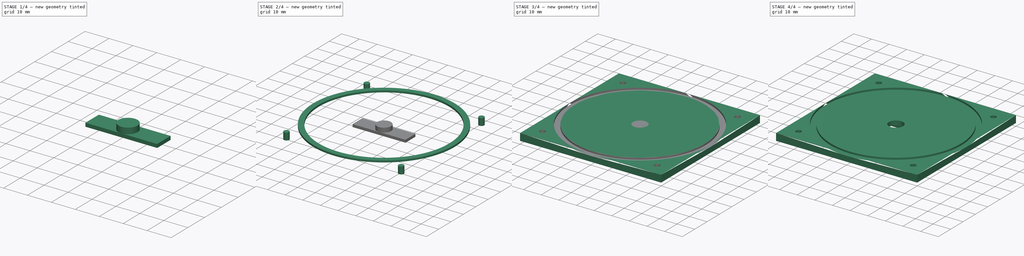
[diagram: build sequence overview — one tinted view per stage of 4, left to right]
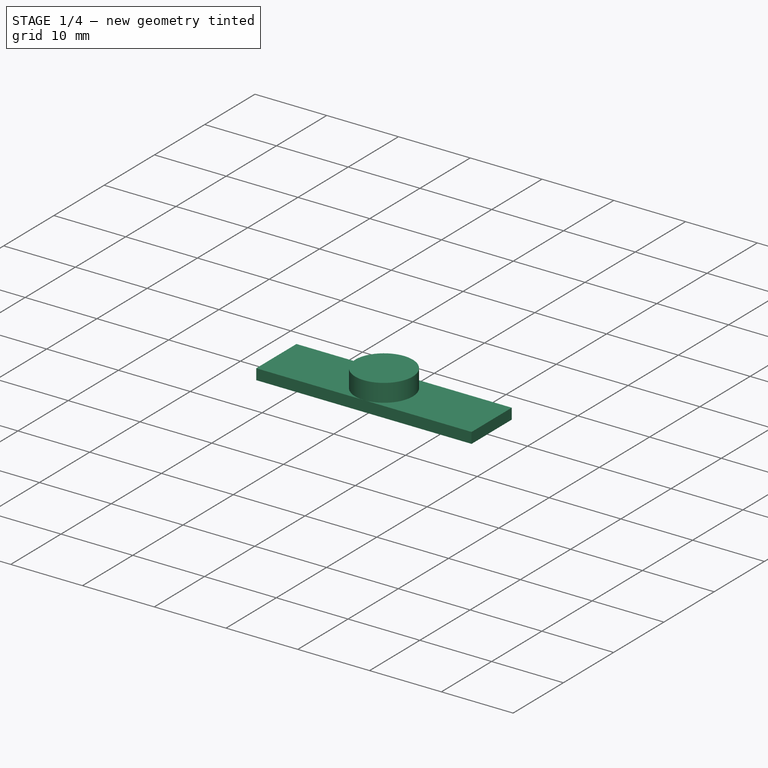
[diagram: stage 1 of 4 — iso view after this stage's code; geometry added in this stage tinted green]
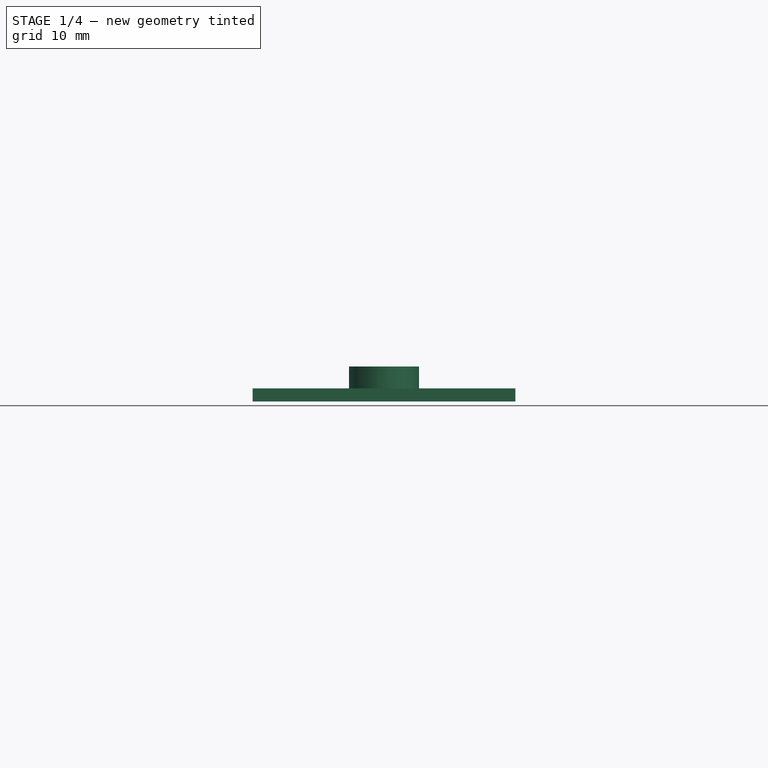
[diagram: stage 1 of 4 — front view after this stage's code; geometry added in this stage tinted green]
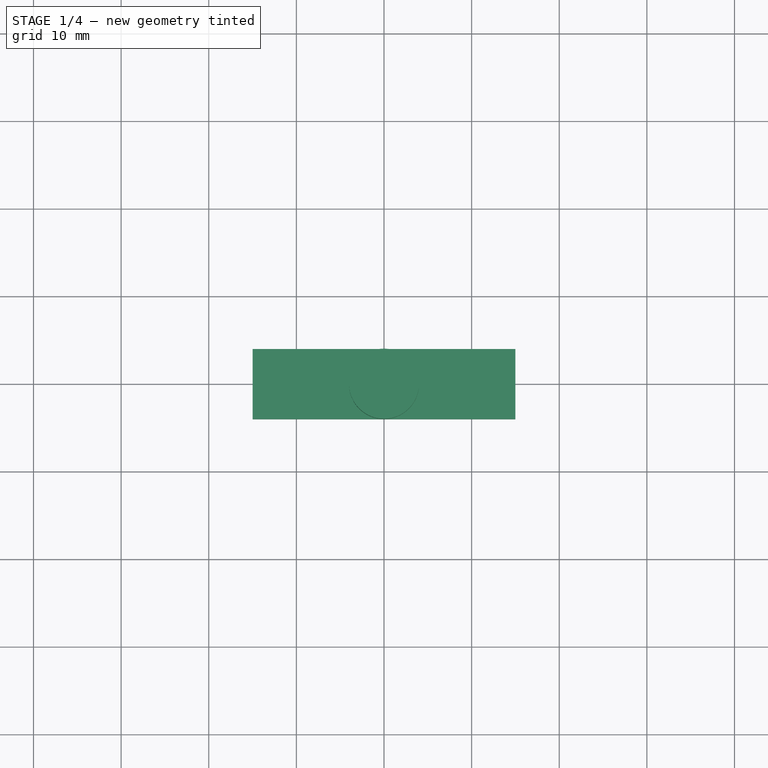
[diagram: stage 1 of 4 — top view after this stage's code; geometry added in this stage tinted green]
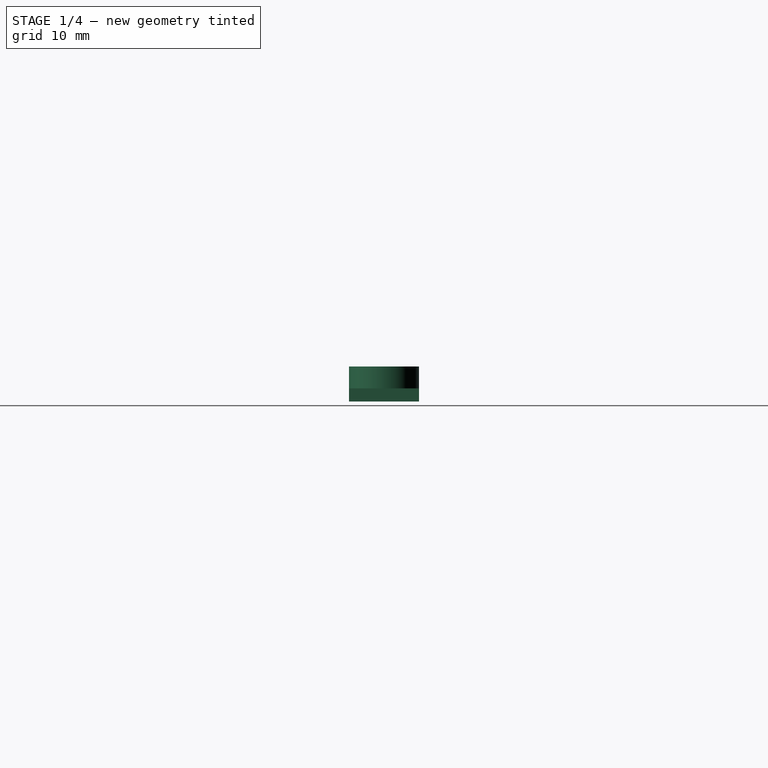
[diagram: stage 1 of 4 — right view after this stage's code; geometry added in this stage tinted green]
FCSTD DOCUMENT  (FreeCAD 0.14R3700 (Git))
Label: BR_socle
License: CC-BY 3.0
LicenseURL: http://creativecommons.org/licenses/by/3.0/
objects: Sketcher::SketchObject×5, Part::Extrusion×5, Part::Cut×4, Part::Feature×1
note: 15 computed .brp shape members not serialized (recipe doc carries the construction recipe); baked Part::Feature solids carry a one-line shape summary decoded from their .brp

FEATURE [Sketcher::SketchObject] Sketch003  label="AxeRotation"
  sketch-geometry (1):
    g0: Circle CenterX=0 CenterY=0 CenterZ=0 NormalX=0 NormalY=0 NormalZ=1 Radius=4
  constraints (2):
    c: Coincident(g0,g-1)
    c: Radius(g0) = 4
FEATURE [Part::Extrusion] Extrude003
  Base = -> Sketch003
  Dir = (0,0,4)
  Solid = true
FEATURE [Sketcher::SketchObject] Sketch004  label="FixationTube"
  sketch-geometry (4):
    g0: LineSegment StartX=-15 StartY=4 StartZ=0 EndX=15 EndY=4 EndZ=0
    g1: LineSegment StartX=15 StartY=4 StartZ=0 EndX=15 EndY=-4 EndZ=0
    g2: LineSegment StartX=15 StartY=-4 StartZ=0 EndX=-15 EndY=-4 EndZ=0
    g3: LineSegment StartX=-15 StartY=-4 StartZ=0 EndX=-15 EndY=4 EndZ=0
  constraints (12):
    c: Coincident(g0,g1)
    c: Coincident(g1,g2)
    c: Coincident(g2,g3)
    c: Coincident(g3,g0)
    c: Horizontal(g0)
    c: Horizontal(g2)
    c: Vertical(g1)
    c: Vertical(g3)
    c: Symmetric(g0,g2,g-1)
    c: Symmetric(g0,g0,g-2)
    c: DistanceX(g2) = -30
    c: DistanceY(g3) = 8
FEATURE [Part::Extrusion] Extrude004
  Base = -> Sketch004
  Dir = (0,0,1.5)
  Solid = true
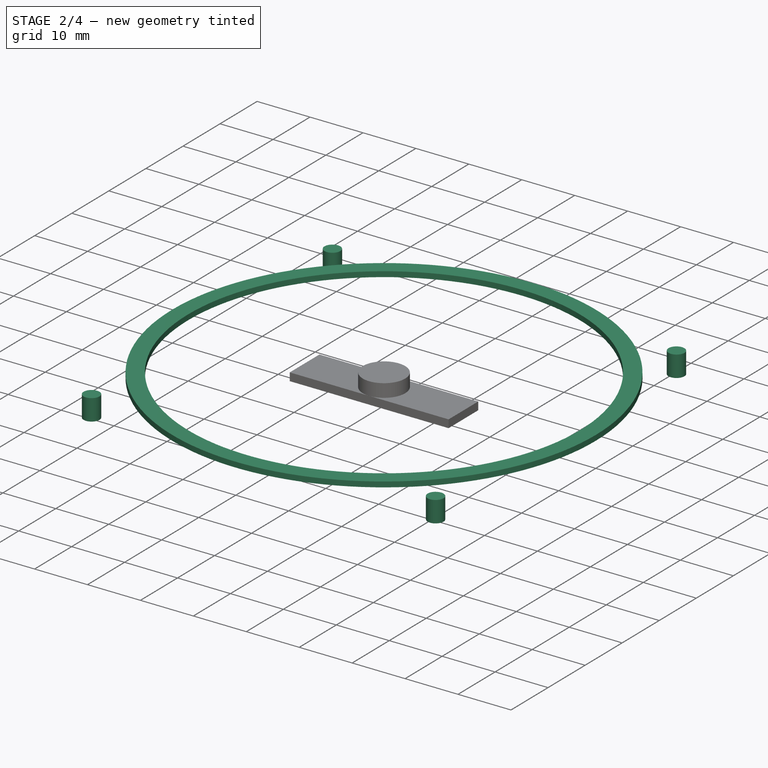
[diagram: stage 2 of 4 — iso view after this stage's code; geometry added in this stage tinted green]
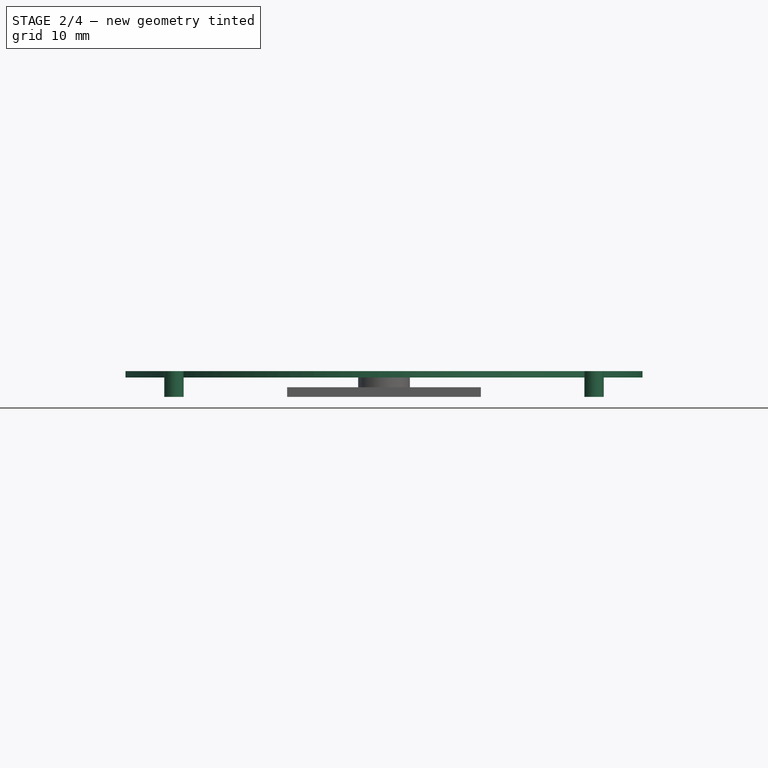
[diagram: stage 2 of 4 — front view after this stage's code; geometry added in this stage tinted green]
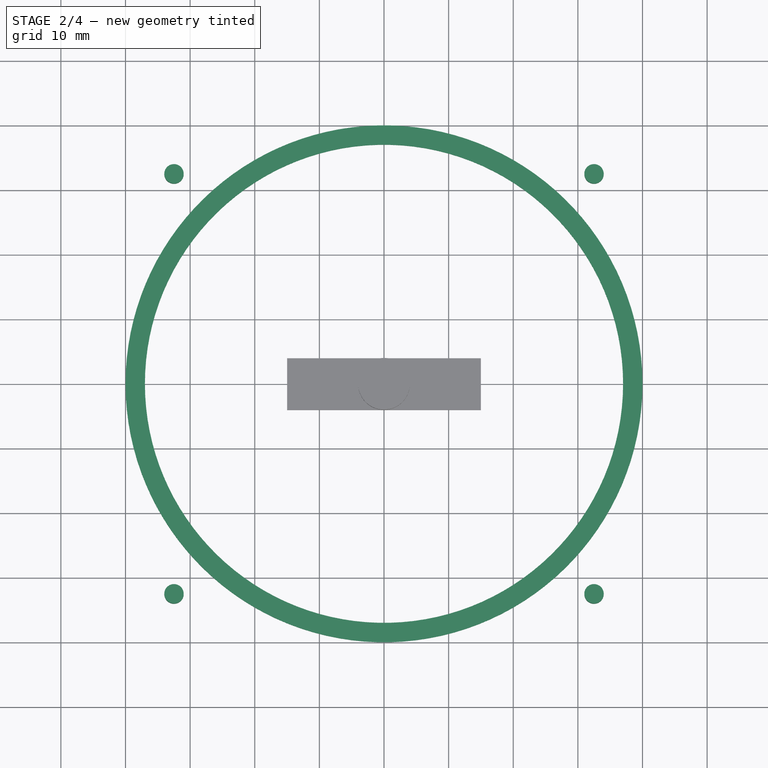
[diagram: stage 2 of 4 — top view after this stage's code; geometry added in this stage tinted green]
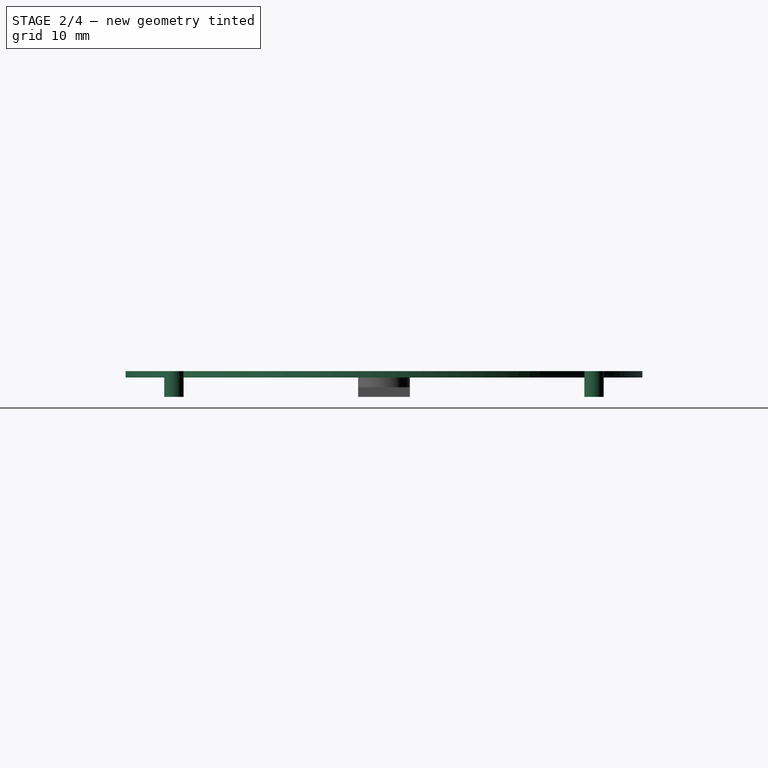
[diagram: stage 2 of 4 — right view after this stage's code; geometry added in this stage tinted green]
FEATURE [Sketcher::SketchObject] Sketch001  label="RainureTube"
  Placement = pos=(0,0,4) rot=(0,0,1;0rad)
  sketch-geometry (2):
    g0: Circle CenterX=0 CenterY=0 CenterZ=0 NormalX=0 NormalY=0 NormalZ=1 Radius=40
    g1: Circle CenterX=0 CenterY=0 CenterZ=0 NormalX=0 NormalY=0 NormalZ=1 Radius=37
  constraints (4):
    c: Coincident(g0,g-1)
    c: Radius(g0) = 40
    c: Coincident(g1,g-1)
    c: Radius(g1) = 37
FEATURE [Part::Extrusion] Extrude001
  Base = -> Sketch001
  Dir = (0,0,-1)
  Solid = true
FEATURE [Sketcher::SketchObject] Sketch002  label="TrousFixationTube"
  sketch-geometry (4):
    g0: Circle CenterX=-32.5 CenterY=-32.5 CenterZ=0 NormalX=0 NormalY=0 NormalZ=1 Radius=1.5
    g1: Circle CenterX=32.5 CenterY=-32.5 CenterZ=0 NormalX=0 NormalY=0 NormalZ=1 Radius=1.5
    g2: Circle CenterX=32.5 CenterY=32.5 CenterZ=0 NormalX=0 NormalY=0 NormalZ=1 Radius=1.5
    g3: Circle CenterX=-32.5 CenterY=32.5 CenterZ=0 NormalX=0 NormalY=0 NormalZ=1 Radius=1.5
  constraints (9):
    c: DistanceY(g-1,g0) = -32.5
    c: DistanceX(g-1,g0) = -32.5
    c: Symmetric(g0,g1,g-2)
    c: Symmetric(g0,g3,g-1)
    c: Symmetric(g1,g2,g-1)
    c: Radius(g0) = 1.5
    c: Radius(g1) = 1.5
    c: Radius(g2) = 1.5
    c: Radius(g3) = 1.5
FEATURE [Part::Extrusion] Extrude002
  Base = -> Sketch002
  Dir = (0,0,4)
  Solid = true
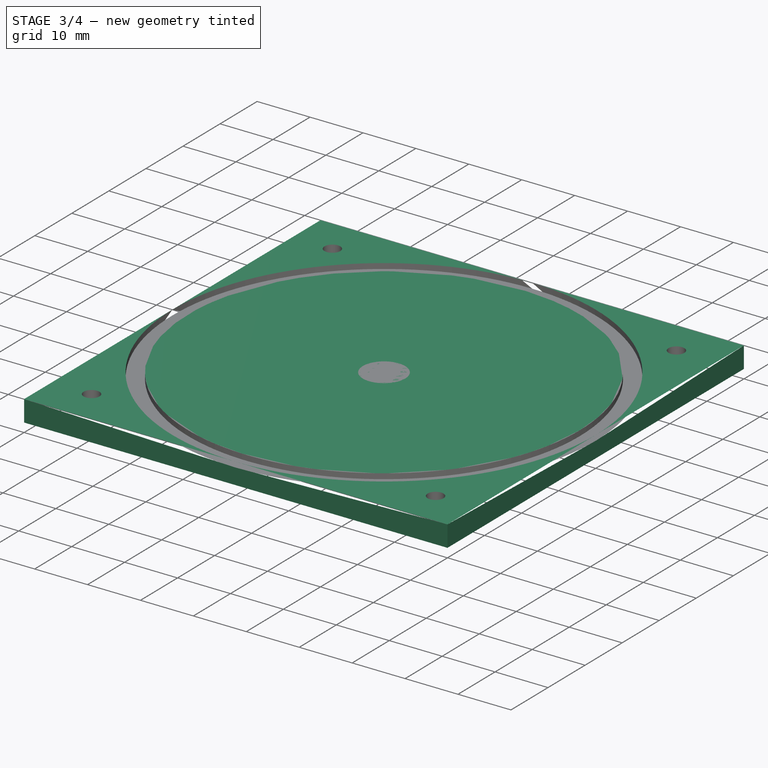
[diagram: stage 3 of 4 — iso view after this stage's code; geometry added in this stage tinted green]
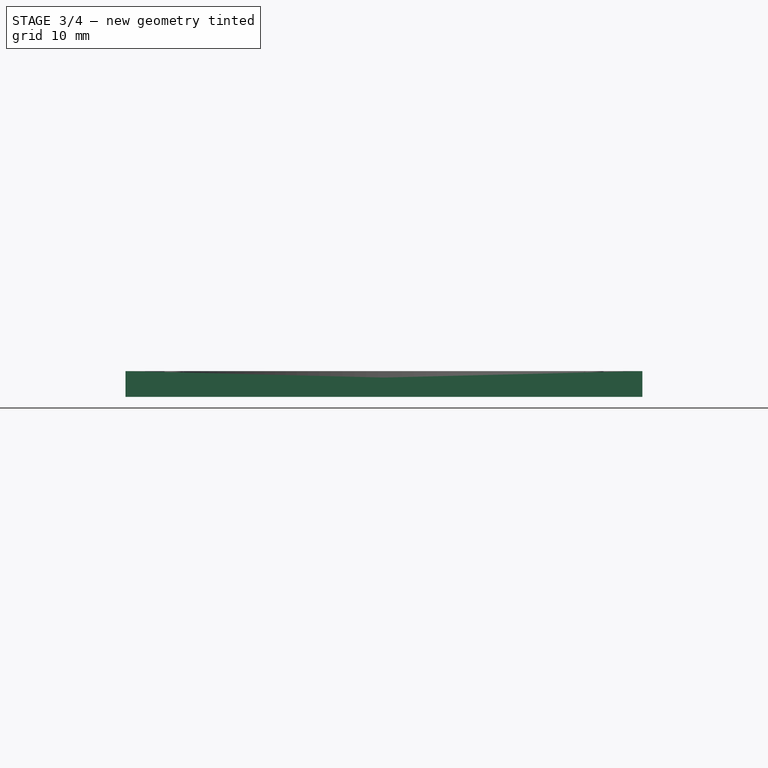
[diagram: stage 3 of 4 — front view after this stage's code; geometry added in this stage tinted green]
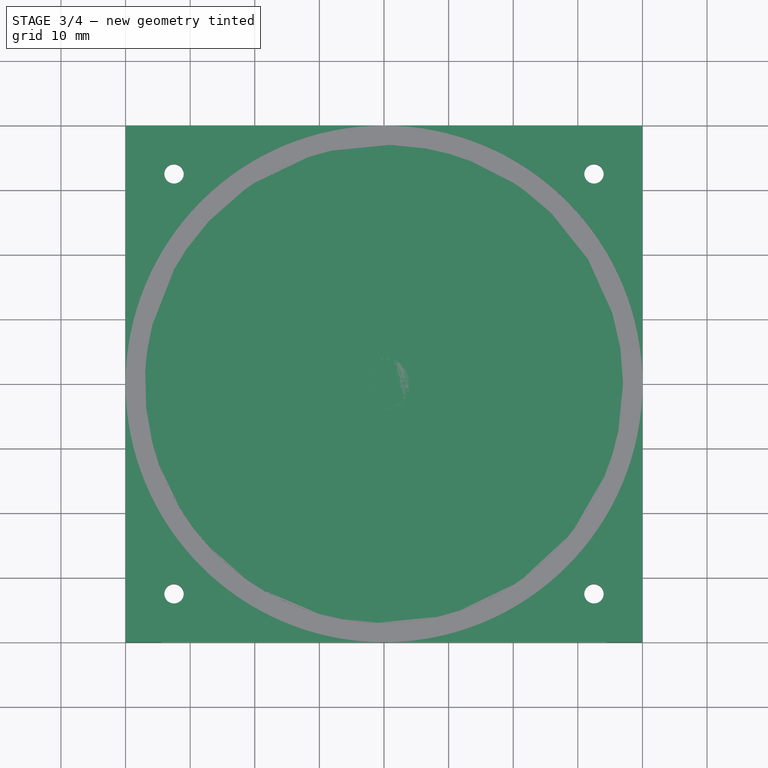
[diagram: stage 3 of 4 — top view after this stage's code; geometry added in this stage tinted green]
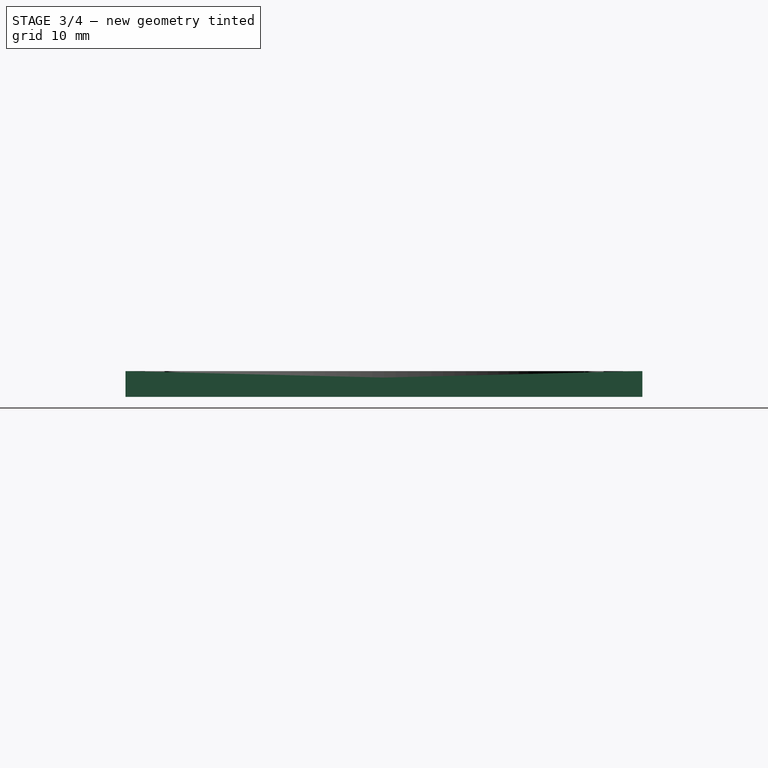
[diagram: stage 3 of 4 — right view after this stage's code; geometry added in this stage tinted green]
FEATURE [Sketcher::SketchObject] Sketch  label="Base"
  sketch-geometry (4):
    g0: LineSegment StartX=-40 StartY=40 StartZ=0 EndX=40 EndY=40 EndZ=0
    g1: LineSegment StartX=40 StartY=40 StartZ=0 EndX=40 EndY=-40 EndZ=0
    g2: LineSegment StartX=40 StartY=-40 StartZ=0 EndX=-40 EndY=-40 EndZ=0
    g3: LineSegment StartX=-40 StartY=-40 StartZ=0 EndX=-40 EndY=40 EndZ=0
  constraints (12):
    c: Coincident(g0,g1)
    c: Coincident(g1,g2)
    c: Coincident(g2,g3)
    c: Coincident(g3,g0)
    c: Horizontal(g0)
    c: Horizontal(g2)
    c: Vertical(g1)
    c: Vertical(g3)
    c: DistanceX(g0) = 80
    c: DistanceY(g1) = -80
    c: Symmetric(g2,g1,g-2)
    c: Symmetric(g0,g2,g-1)
FEATURE [Part::Extrusion] Extrude
  Base = -> Sketch
  Dir = (0,0,4)
  Solid = true
FEATURE [Part::Cut] Cut
  Base = -> Extrude
  Tool = -> Extrude001
FEATURE [Part::Cut] Cut001
  Base = -> Cut
  Tool = -> Extrude002
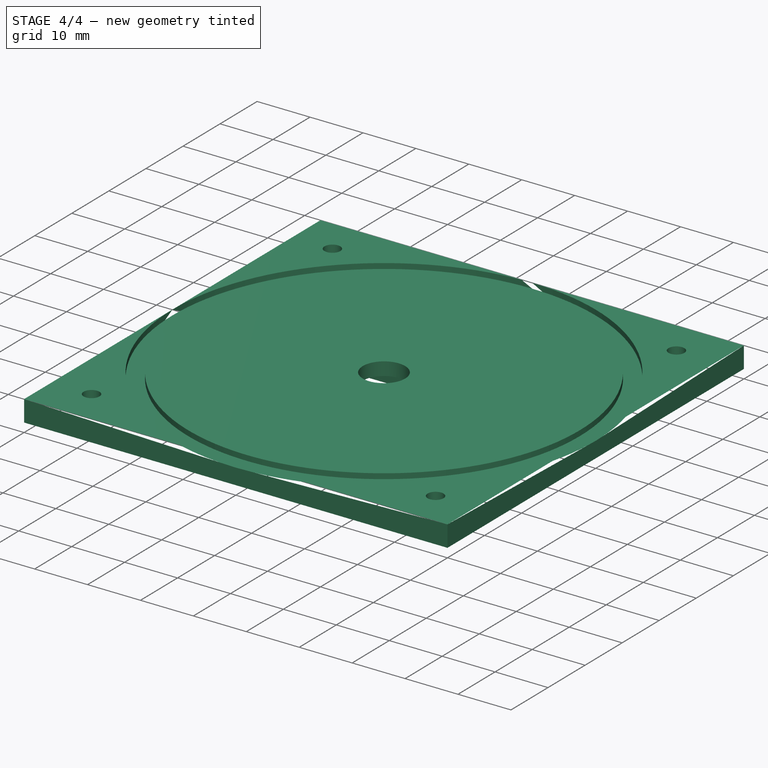
[diagram: stage 4 of 4 — iso view after this stage's code; geometry added in this stage tinted green]
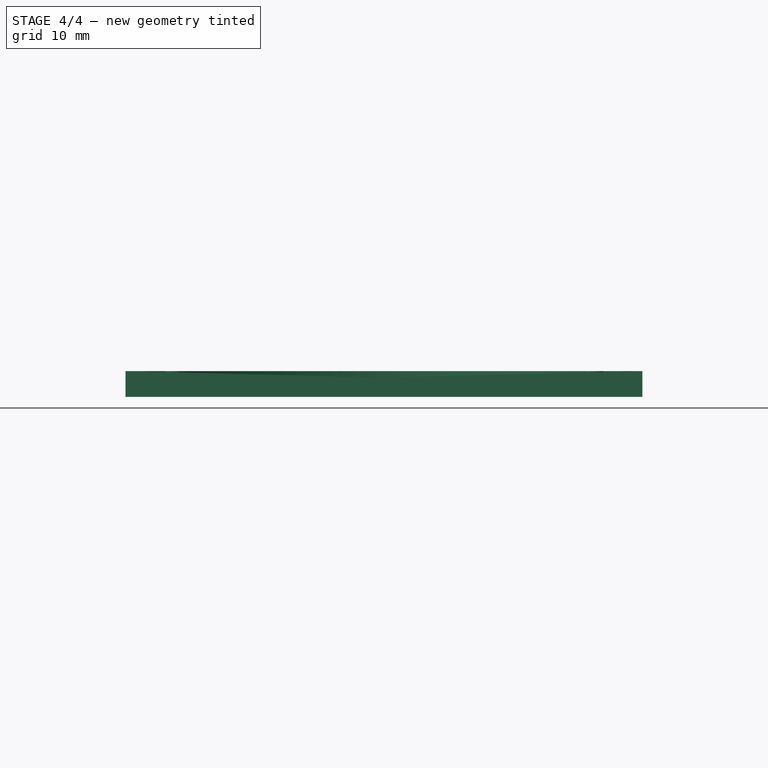
[diagram: stage 4 of 4 — front view after this stage's code; geometry added in this stage tinted green]
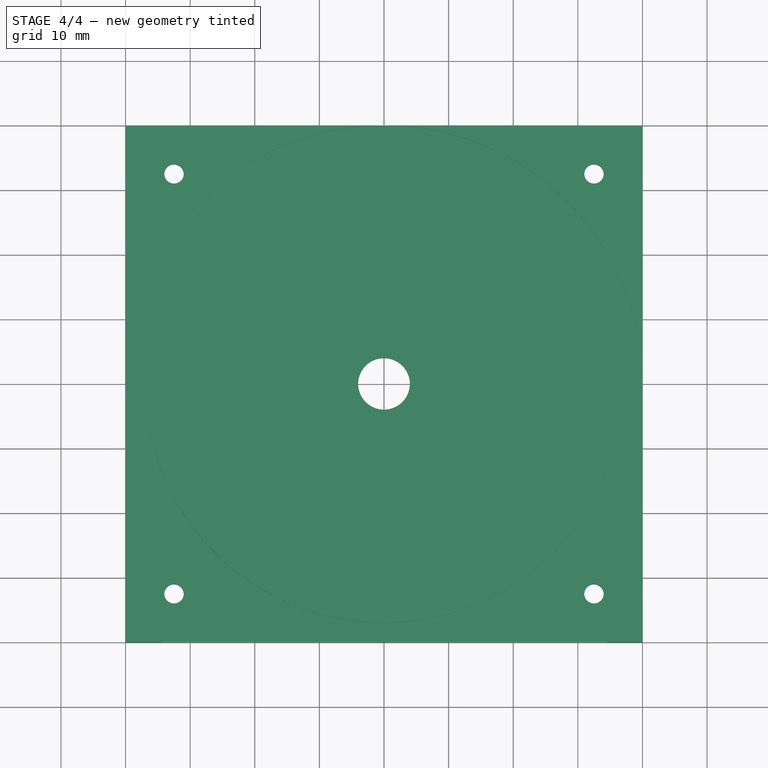
[diagram: stage 4 of 4 — top view after this stage's code; geometry added in this stage tinted green]
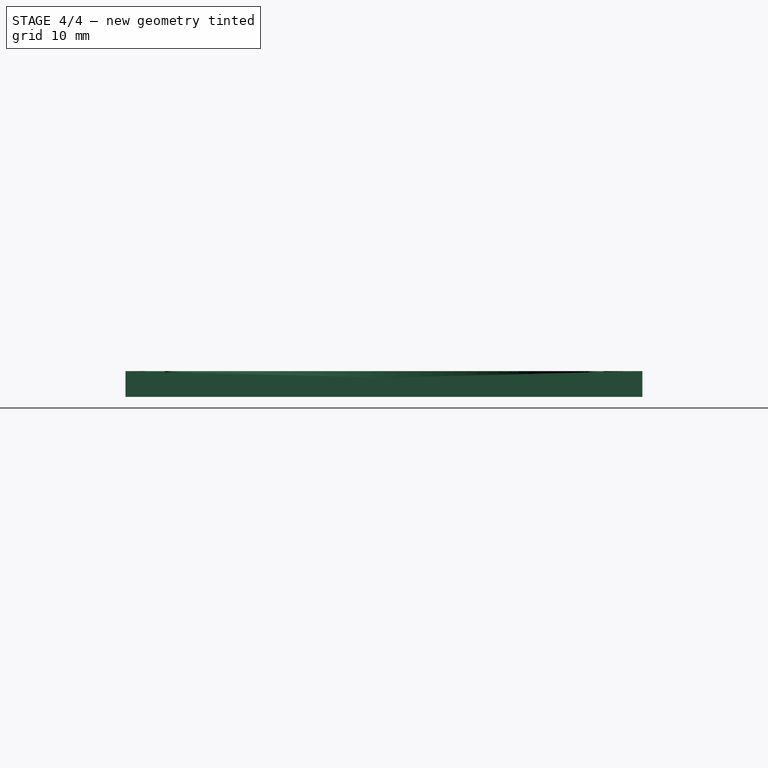
[diagram: stage 4 of 4 — right view after this stage's code; geometry added in this stage tinted green]
FEATURE [Part::Cut] Cut002
  Base = -> Cut001
  Tool = -> Extrude003
FEATURE [Part::Cut] Cut003
  Base = -> Cut002
  Tool = -> Extrude004
FEATURE [Part::Feature] Cut003001  label="Socle_copy"
  shape: bbox 80 x 80 x 4 mm, 29 faces (baked)
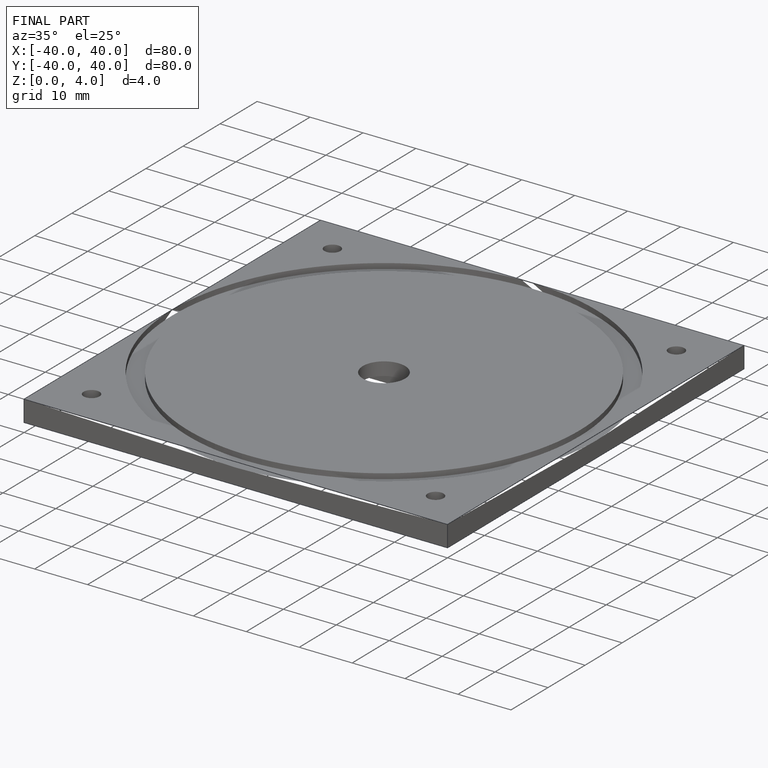
[diagram: finished part — iso view with bounding-box wireframe]
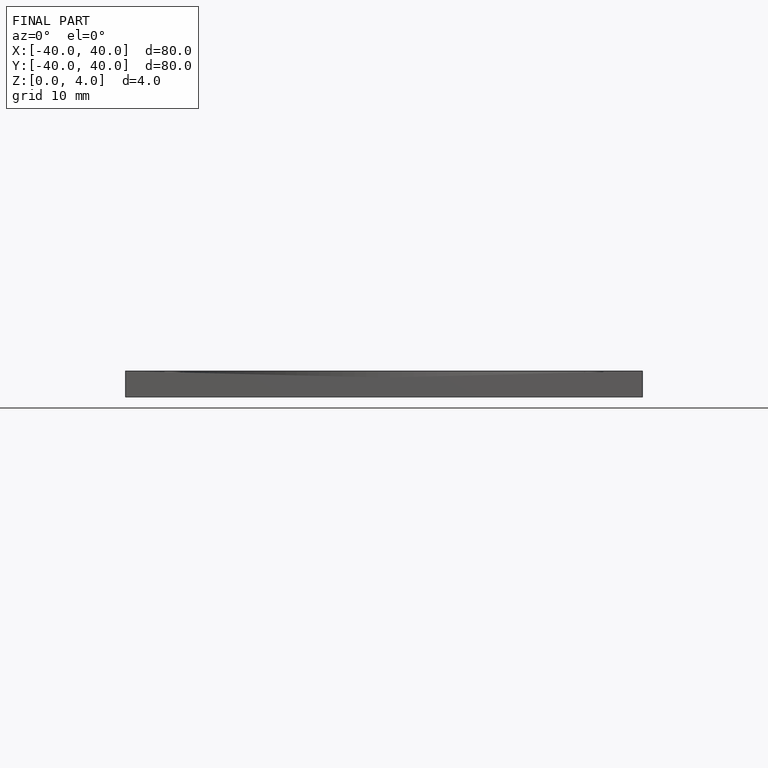
[diagram: finished part — front view with bounding-box wireframe]
